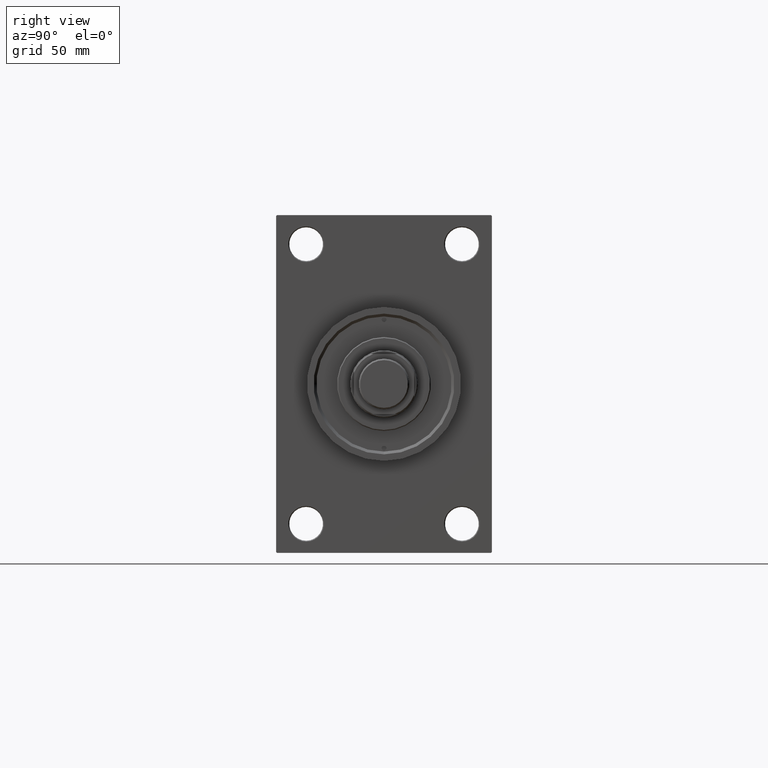
[diagram: clean part render]
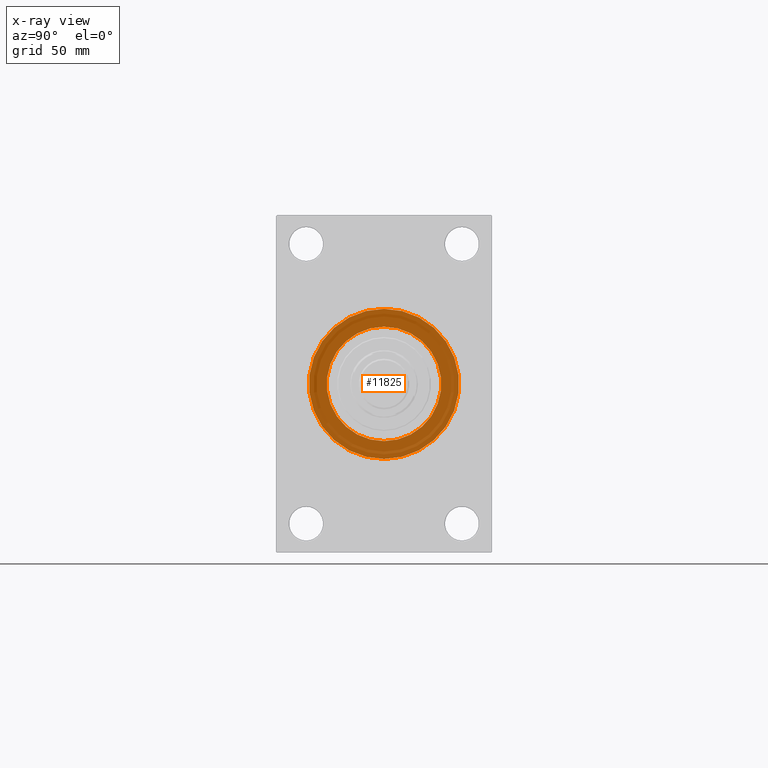
[diagram: x-ray — body ghosted, one internal face saturated and labeled with its STEP entity id]
A machine part, right view, then the same camera in x-ray: the body is ghosted and one INTERNAL B-rep face — a face not visible from any outside direction — is saturated and labeled: STEP entity #11825.
In plain terms, the highlighted planar face has unit normal (-1, 0, 0).
Its self-contained STEP definition (entity closure, byte-faithful):
#1244 = FACE_BOUND ( 'NONE', #44740, .T. ) ;
#1605 = CARTESIAN_POINT ( 'NONE',  ( 169.9999999999999716, 0.000000000000000000, -30.50000000000000000 ) ) ;
#2829 = EDGE_CURVE ( 'NONE', #29517, #15496, #29591, .T. ) ;
#4533 = CARTESIAN_POINT ( 'NONE',  ( 169.9999999999999716, 0.000000000000000000, 0.000000000000000000 ) ) ;
#4635 = ORIENTED_EDGE ( 'NONE', *, *, #45059, .F. ) ;
#4666 = DIRECTION ( 'NONE',  ( -1.000000000000000000, 0.000000000000000000, -0.000000000000000000 ) ) ;
#7316 = ORIENTED_EDGE ( 'NONE', *, *, #2829, .F. ) ;
#8200 = EDGE_CURVE ( 'NONE', #48047, #24405, #46839, .T. ) ;
#8685 = DIRECTION ( 'NONE',  ( 0.000000000000000000, 0.000000000000000000, 1.000000000000000000 ) ) ;
#9193 = DIRECTION ( 'NONE',  ( 1.000000000000000000, 0.000000000000000000, 0.000000000000000000 ) ) ;
#10273 = AXIS2_PLACEMENT_3D ( 'NONE', #37927, #4666, #45964 ) ;
#10689 = DIRECTION ( 'NONE',  ( 1.000000000000000000, 0.000000000000000000, 0.000000000000000000 ) ) ;
#10798 = DIRECTION ( 'NONE',  ( 0.000000000000000000, 0.000000000000000000, 1.000000000000000000 ) ) ;
#11765 = FACE_OUTER_BOUND ( 'NONE', #41238, .T. ) ;
#11825 = ADVANCED_FACE ( 'NONE', ( #1244, #11765 ), #34485, .T. ) ;
#12296 = ORIENTED_EDGE ( 'NONE', *, *, #8200, .F. ) ;
#12456 = AXIS2_PLACEMENT_3D ( 'NONE', #18504, #10689, #36609 ) ;
#12490 = ORIENTED_EDGE ( 'NONE', *, *, #33421, .F. ) ;
#15496 = VERTEX_POINT ( 'NONE', #1605 ) ;
#18504 = CARTESIAN_POINT ( 'NONE',  ( 169.9999999999999716, -2.602085213965210642E-15, 0.000000000000000000 ) ) ;
#20664 = DIRECTION ( 'NONE',  ( 0.000000000000000000, 0.000000000000000000, -1.000000000000000000 ) ) ;
#23340 = DIRECTION ( 'NONE',  ( -1.000000000000000000, 0.000000000000000000, -0.000000000000000000 ) ) ;
#24405 = VERTEX_POINT ( 'NONE', #40452 ) ;
#28172 = CARTESIAN_POINT ( 'NONE',  ( 169.9999999999999716, 0.000000000000000000, 0.000000000000000000 ) ) ;
#29517 = VERTEX_POINT ( 'NONE', #46101 ) ;
#29591 = CIRCLE ( 'NONE', #33499, 30.50000000000000000 ) ;
#31462 = CARTESIAN_POINT ( 'NONE',  ( 169.9999999999999716, -2.602085213965210642E-15, 40.00000000000000000 ) ) ;
#31692 = CARTESIAN_POINT ( 'NONE',  ( 169.9999999999999716, -2.602085213965210642E-15, 0.000000000000000000 ) ) ;
#33421 = EDGE_CURVE ( 'NONE', #24405, #48047, #39797, .T. ) ;
#33499 = AXIS2_PLACEMENT_3D ( 'NONE', #4533, #23340, #8685 ) ;
#34485 = PLANE ( 'NONE',  #10273 ) ;
#36157 = AXIS2_PLACEMENT_3D ( 'NONE', #28172, #43091, #10798 ) ;
#36609 = DIRECTION ( 'NONE',  ( 0.000000000000000000, 0.000000000000000000, -1.000000000000000000 ) ) ;
#37927 = CARTESIAN_POINT ( 'NONE',  ( 169.9999999999999716, 0.000000000000000000, 0.000000000000000000 ) ) ;
#39797 = CIRCLE ( 'NONE', #12456, 40.00000000000000000 ) ;
#40452 = CARTESIAN_POINT ( 'NONE',  ( 169.9999999999999716, 2.296501982624201990E-15, -40.00000000000000000 ) ) ;
#41238 = EDGE_LOOP ( 'NONE', ( #12296, #12490 ) ) ;
#43091 = DIRECTION ( 'NONE',  ( -1.000000000000000000, 0.000000000000000000, -0.000000000000000000 ) ) ;
#44740 = EDGE_LOOP ( 'NONE', ( #4635, #7316 ) ) ;
#45059 = EDGE_CURVE ( 'NONE', #15496, #29517, #47848, .T. ) ;
#45964 = DIRECTION ( 'NONE',  ( -0.000000000000000000, 0.000000000000000000, 1.000000000000000000 ) ) ;
#46101 = CARTESIAN_POINT ( 'NONE',  ( 169.9999999999999716, 3.735172737399426752E-15, 30.50000000000000000 ) ) ;
#46839 = CIRCLE ( 'NONE', #47653, 40.00000000000000000 ) ;
#47653 = AXIS2_PLACEMENT_3D ( 'NONE', #31692, #9193, #20664 ) ;
#47848 = CIRCLE ( 'NONE', #36157, 30.50000000000000000 ) ;
#48047 = VERTEX_POINT ( 'NONE', #31462 ) ;